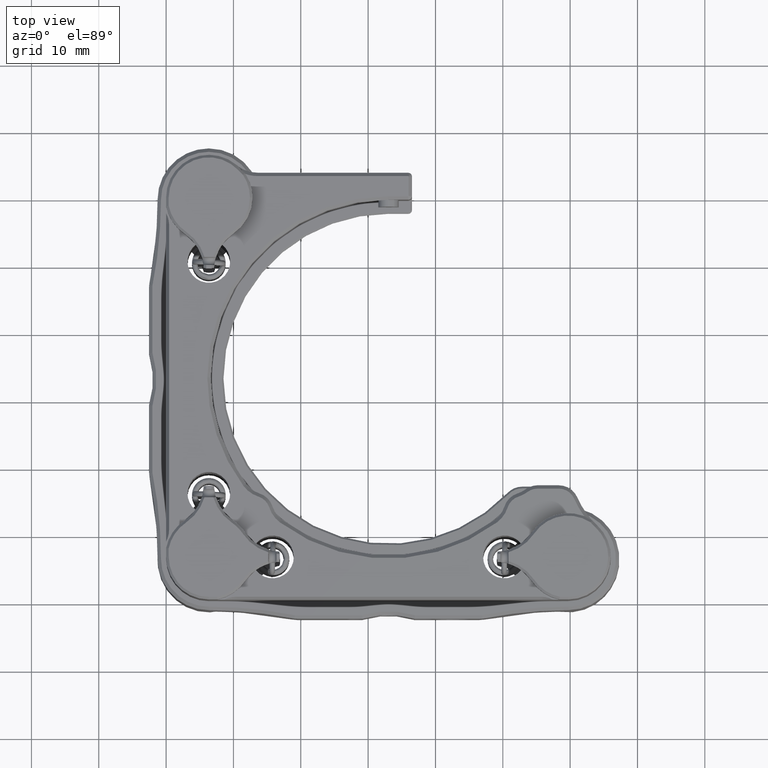
[diagram: clean part render]
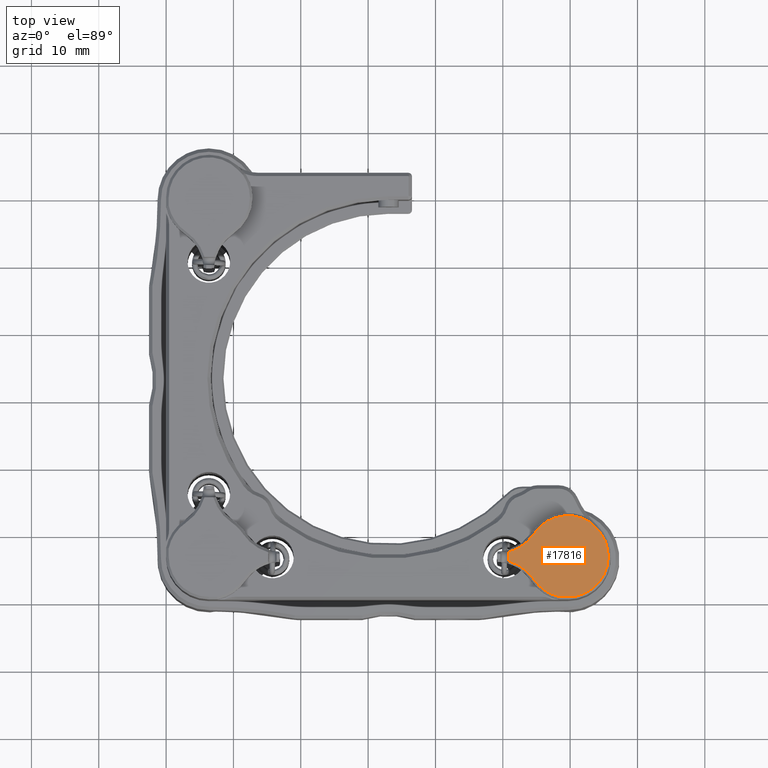
[diagram: same view with one face highlighted and labeled with its STEP entity id]
A machine part, top view. The second image highlights one B-rep face of the part: STEP entity #17816.
In plain terms, the highlighted planar face has unit normal (0, 0, -1).
Its self-contained STEP definition (entity closure, byte-faithful):
#21 = CIRCLE ( 'NONE', #20197, 5.969000000000016293 ) ;
#216 = DIRECTION ( 'NONE',  ( -0.000000000000000000, -0.000000000000000000, -1.000000000000000000 ) ) ;
#319 = DIRECTION ( 'NONE',  ( -0.000000000000000000, -0.000000000000000000, -1.000000000000000000 ) ) ;
#698 = CARTESIAN_POINT ( 'NONE',  ( -58.48744933024408965, 13.31589626079927946, 26.53856876018479483 ) ) ;
#1840 = DIRECTION ( 'NONE',  ( -1.002572603114821194E-15, 1.000000000000000000, 0.000000000000000000 ) ) ;
#2226 = ORIENTED_EDGE ( 'NONE', *, *, #13018, .F. ) ;
#2503 = AXIS2_PLACEMENT_3D ( 'NONE', #18585, #216, #7144 ) ;
#2547 = CARTESIAN_POINT ( 'NONE',  ( -62.27608692906566290, 17.36284535469307500, 26.53856876018479483 ) ) ;
#2697 = DIRECTION ( 'NONE',  ( 0.000000000000000000, 0.000000000000000000, 1.000000000000000000 ) ) ;
#2967 = DIRECTION ( 'NONE',  ( -1.000000000000000000, -7.588466649067271611E-16, 0.000000000000000000 ) ) ;
#3450 = AXIS2_PLACEMENT_3D ( 'NONE', #21017, #19669, #7691 ) ;
#3889 = AXIS2_PLACEMENT_3D ( 'NONE', #20237, #24643, #13208 ) ;
#4370 = CIRCLE ( 'NONE', #2503, 6.858000000000114227 ) ;
#4998 = DIRECTION ( 'NONE',  ( 0.000000000000000000, 0.000000000000000000, 1.000000000000000000 ) ) ;
#5041 = DIRECTION ( 'NONE',  ( 0.000000000000000000, 0.000000000000000000, 1.000000000000000000 ) ) ;
#5301 = EDGE_CURVE ( 'NONE', #23234, #17924, #6111, .T. ) ;
#5649 = EDGE_CURVE ( 'NONE', #15644, #9855, #21, .T. ) ;
#5672 = VERTEX_POINT ( 'NONE', #2547 ) ;
#6111 = LINE ( 'NONE', #12428, #13688 ) ;
#6147 = ORIENTED_EDGE ( 'NONE', *, *, #5301, .F. ) ;
#7144 = DIRECTION ( 'NONE',  ( -1.000000000000000000, -1.011795553208969417E-15, 0.000000000000000000 ) ) ;
#7691 = DIRECTION ( 'NONE',  ( -1.000000000000000000, -7.880330750954622732E-16, 0.000000000000000000 ) ) ;
#8794 = CARTESIAN_POINT ( 'NONE',  ( -66.09558829131654534, 7.990246495063708210, 26.53856876018479483 ) ) ;
#9371 = ORIENTED_EDGE ( 'NONE', *, *, #20552, .F. ) ;
#9563 = ORIENTED_EDGE ( 'NONE', *, *, #13736, .F. ) ;
#9847 = CARTESIAN_POINT ( 'NONE',  ( -71.42226899838510690, 18.30785158618964914, 26.53856876018479483 ) ) ;
#9855 = VERTEX_POINT ( 'NONE', #13877 ) ;
#10525 = DIRECTION ( 'NONE',  ( 1.000000000000000000, 1.040703997586386580E-15, 0.000000000000000000 ) ) ;
#10956 = CIRCLE ( 'NONE', #3450, 13.20799999999996999 ) ;
#11832 = CARTESIAN_POINT ( 'NONE',  ( -67.33343117310592163, 13.95924649506372717, 26.53856876018479483 ) ) ;
#12355 = CIRCLE ( 'NONE', #3889, 6.095999999999740737 ) ;
#12428 = CARTESIAN_POINT ( 'NONE',  ( -40.66343117310590571, 7.990246495063735743, 26.53856876018479483 ) ) ;
#12872 = EDGE_CURVE ( 'NONE', #26166, #15363, #13026, .T. ) ;
#13018 = EDGE_CURVE ( 'NONE', #15363, #5672, #4370, .T. ) ;
#13026 = LINE ( 'NONE', #21969, #28817 ) ;
#13208 = DIRECTION ( 'NONE',  ( -1.000000000000000000, -1.707404996040237136E-15, 0.000000000000000000 ) ) ;
#13688 = VECTOR ( 'NONE', #10525, 1000.000000000000000 ) ;
#13736 = EDGE_CURVE ( 'NONE', #28882, #15644, #10956, .T. ) ;
#13877 = CARTESIAN_POINT ( 'NONE',  ( -73.30243117310592993, 13.95924649506372184, 26.53856876018479483 ) ) ;
#13949 = DIRECTION ( 'NONE',  ( -1.000000000000000000, -8.537024980201147223E-16, 0.000000000000000000 ) ) ;
#13984 = CIRCLE ( 'NONE', #21452, 6.858000000000114227 ) ;
#14264 = ORIENTED_EDGE ( 'NONE', *, *, #5649, .F. ) ;
#14411 = AXIS2_PLACEMENT_3D ( 'NONE', #25112, #4998, #13949 ) ;
#15363 = VERTEX_POINT ( 'NONE', #28113 ) ;
#15614 = EDGE_LOOP ( 'NONE', ( #28763, #6147, #9371, #14264, #9563, #20131, #2226, #24543, #28283 ) ) ;
#15644 = VERTEX_POINT ( 'NONE', #9847 ) ;
#16193 = CARTESIAN_POINT ( 'NONE',  ( -56.58657465452019153, 6.726598918351225365, 26.53856876018479483 ) ) ;
#17168 = PLANE ( 'NONE',  #20981 ) ;
#17402 = CARTESIAN_POINT ( 'NONE',  ( -70.70178725226581662, 19.04013158764195524, 26.53856876018479483 ) ) ;
#17816 = ADVANCED_FACE ( 'NONE', ( #26587 ), #17168, .F. ) ;
#17924 = VERTEX_POINT ( 'NONE', #8794 ) ;
#18122 = DIRECTION ( 'NONE',  ( -1.000000000000000000, -6.974931047653418585E-15, 0.000000000000000000 ) ) ;
#18131 = CIRCLE ( 'NONE', #21390, 5.969000000000016293 ) ;
#18585 = CARTESIAN_POINT ( 'NONE',  ( -56.58657465452012048, 21.19189407177614015, 26.53856876018479483 ) ) ;
#19669 = DIRECTION ( 'NONE',  ( -0.000000000000000000, -0.000000000000000000, -1.000000000000000000 ) ) ;
#20131 = ORIENTED_EDGE ( 'NONE', *, *, #20952, .F. ) ;
#20197 = AXIS2_PLACEMENT_3D ( 'NONE', #11832, #2697, #18122 ) ;
#20237 = CARTESIAN_POINT ( 'NONE',  ( -67.33343117310592163, 13.95924649506372717, 26.53856876018479483 ) ) ;
#20552 = EDGE_CURVE ( 'NONE', #9855, #23234, #18131, .T. ) ;
#20952 = EDGE_CURVE ( 'NONE', #5672, #28882, #23759, .T. ) ;
#20981 = AXIS2_PLACEMENT_3D ( 'NONE', #26165, #23910, #21711 ) ;
#21017 = CARTESIAN_POINT ( 'NONE',  ( -80.46991014368370543, 27.93029689421292261, 26.53856876018479483 ) ) ;
#21390 = AXIS2_PLACEMENT_3D ( 'NONE', #25144, #5041, #25300 ) ;
#21452 = AXIS2_PLACEMENT_3D ( 'NONE', #16193, #319, #2967 ) ;
#21711 = DIRECTION ( 'NONE',  ( -1.000000000000000000, -7.805279981897899840E-16, 0.000000000000000000 ) ) ;
#21969 = CARTESIAN_POINT ( 'NONE',  ( -58.48744933024413228, 40.62924649506372532, 26.53856876018479483 ) ) ;
#22568 = EDGE_CURVE ( 'NONE', #26979, #26166, #13984, .T. ) ;
#23234 = VERTEX_POINT ( 'NONE', #24019 ) ;
#23759 = CIRCLE ( 'NONE', #14411, 6.095999999999768271 ) ;
#23910 = DIRECTION ( 'NONE',  ( 0.000000000000000000, 0.000000000000000000, 1.000000000000000000 ) ) ;
#24019 = CARTESIAN_POINT ( 'NONE',  ( -67.33343117310589321, 7.990246495063708210, 26.53856876018479483 ) ) ;
#24543 = ORIENTED_EDGE ( 'NONE', *, *, #12872, .F. ) ;
#24643 = DIRECTION ( 'NONE',  ( 0.000000000000000000, 0.000000000000000000, 1.000000000000000000 ) ) ;
#25112 = CARTESIAN_POINT ( 'NONE',  ( -67.33343117310592163, 13.95924649506372717, 26.53856876018479483 ) ) ;
#25144 = CARTESIAN_POINT ( 'NONE',  ( -67.33343117310592163, 13.95924649506372717, 26.53856876018479483 ) ) ;
#25216 = CARTESIAN_POINT ( 'NONE',  ( -62.27608692906571974, 10.55564763543436690, 26.53856876018479483 ) ) ;
#25300 = DIRECTION ( 'NONE',  ( -1.000000000000000000, -8.718663809566773231E-16, 0.000000000000000000 ) ) ;
#25919 = EDGE_CURVE ( 'NONE', #17924, #26979, #12355, .T. ) ;
#26165 = CARTESIAN_POINT ( 'NONE',  ( -40.66343117310594124, 40.62924649506374664, 26.53856876018479483 ) ) ;
#26166 = VERTEX_POINT ( 'NONE', #698 ) ;
#26587 = FACE_OUTER_BOUND ( 'NONE', #15614, .T. ) ;
#26979 = VERTEX_POINT ( 'NONE', #25216 ) ;
#28113 = CARTESIAN_POINT ( 'NONE',  ( -58.48744933024408965, 14.60259672932810382, 26.53856876018479483 ) ) ;
#28283 = ORIENTED_EDGE ( 'NONE', *, *, #22568, .F. ) ;
#28763 = ORIENTED_EDGE ( 'NONE', *, *, #25919, .F. ) ;
#28817 = VECTOR ( 'NONE', #1840, 1000.000000000000000 ) ;
#28882 = VERTEX_POINT ( 'NONE', #17402 ) ;